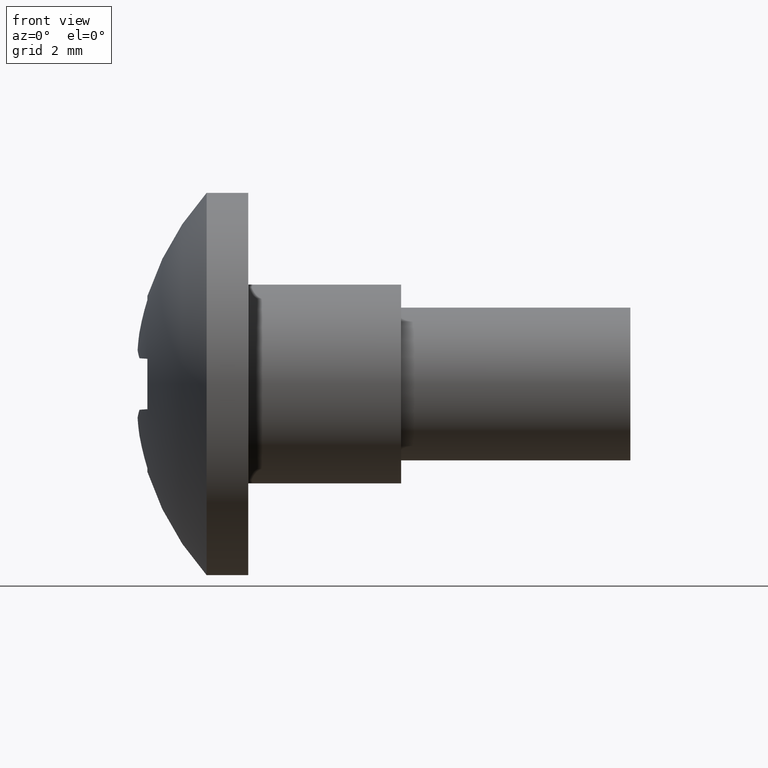
[diagram: clean part render]
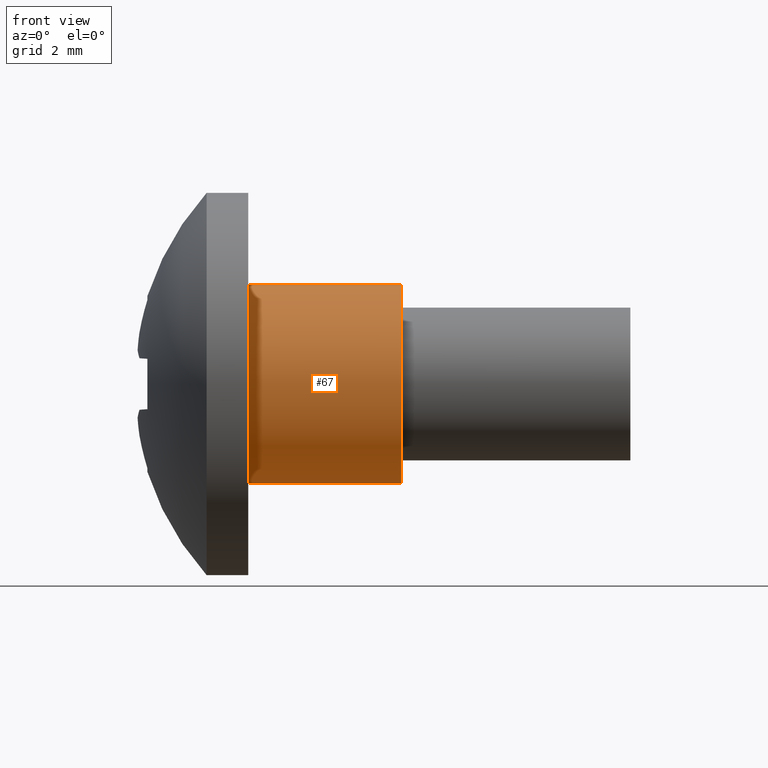
[diagram: same view with one face highlighted and labeled with its STEP entity id]
A machine part, front view. The second image highlights one B-rep face of the part: STEP entity #67.
In plain terms, the highlighted cylindrical surface (partial cylindrical patch) has radius 2.6 mm, axis along (-1, -0, 0).
Its self-contained STEP definition (entity closure, byte-faithful):
#67=ADVANCED_FACE('',(#345),#344,.T.);
#344=CYLINDRICAL_SURFACE('',#534,2.60000000000E+00);
#345=FACE_OUTER_BOUND('',#535,.T.);
#531=CARTESIAN_POINT('',(-8.00000000000E+00,0.00000000000E+00,0.00000000000E+00));
#532=DIRECTION('',(-1.00000000000E+00,-0.00000000000E+00,0.00000000000E+00));
#533=DIRECTION('',(0.00000000000E+00,-0.00000000000E+00,1.00000000000E+00));
#534=AXIS2_PLACEMENT_3D('',#531,#532,#533);
#535=EDGE_LOOP('',(#680,#681,#682,#683));
#680=ORIENTED_EDGE('',*,*,#743,.T.);
#681=ORIENTED_EDGE('',*,*,#794,.T.);
#682=ORIENTED_EDGE('',*,*,#741,.F.);
#683=ORIENTED_EDGE('',*,*,#795,.F.);
#741=EDGE_CURVE('',#944,#945,#946,.T.);
#743=EDGE_CURVE('',#958,#959,#960,.T.);
#794=EDGE_CURVE('',#959,#945,#1298,.T.);
#795=EDGE_CURVE('',#958,#944,#1304,.T.);
#944=VERTEX_POINT('',#1436);
#945=VERTEX_POINT('',#1437);
#946=CIRCLE('',#1441,2.60000000000E+00);
#958=VERTEX_POINT('',#1446);
#959=VERTEX_POINT('',#1447);
#960=CIRCLE('',#1451,2.60000000000E+00);
#1298=(BOUNDED_CURVE() B_SPLINE_CURVE(1,(#1656,#1657),.UNSPECIFIED.,.F.,.F.) B_SPLINE_CURVE_WITH_KNOTS((2,2),(8.33333358172E-02,9.16666671238E-01),.UNSPECIFIED.) CURVE() GEOMETRIC_REPRESENTATION_ITEM() RATIONAL_B_SPLINE_CURVE((1.00000000000E+00,1.00000000000E+00)) REPRESENTATION_ITEM('') );
#1304=(BOUNDED_CURVE() B_SPLINE_CURVE(1,(#1658,#1659),.UNSPECIFIED.,.F.,.F.) B_SPLINE_CURVE_WITH_KNOTS((2,2),(8.33333333333E-02,9.16666666667E-01),.UNSPECIFIED.) CURVE() GEOMETRIC_REPRESENTATION_ITEM() RATIONAL_B_SPLINE_CURVE((7.50000000000E-01,7.50000000000E-01)) REPRESENTATION_ITEM('') );
#1436=CARTESIAN_POINT('',(-1.00000000000E+01,3.18397651994E-16,-2.60000000000E+00));
#1437=CARTESIAN_POINT('',(-1.00000000000E+01,1.48029736617E-16,2.60000000000E+00));
#1438=CARTESIAN_POINT('',(-1.00000000000E+01,0.00000000000E+00,0.00000000000E+00));
#1439=DIRECTION('',(-1.00000000000E+00,0.00000000000E+00,0.00000000000E+00));
#1440=DIRECTION('',(-0.00000000000E+00,-0.00000000000E+00,-1.00000000000E+00));
#1441=AXIS2_PLACEMENT_3D('',#1438,#1439,#1440);
#1446=CARTESIAN_POINT('',(-6.00000000000E+00,0.00000000000E+00,-2.60000000000E+00));
#1447=CARTESIAN_POINT('',(-6.00000000000E+00,-4.66427388611E-16,2.60000000000E+00));
#1448=CARTESIAN_POINT('',(-6.00000000000E+00,0.00000000000E+00,0.00000000000E+00));
#1449=DIRECTION('',(-1.00000000000E+00,0.00000000000E+00,0.00000000000E+00));
#1450=DIRECTION('',(-0.00000000000E+00,-5.69345140835E-17,1.00000000000E+00));
#1451=AXIS2_PLACEMENT_3D('',#1448,#1449,#1450);
#1656=CARTESIAN_POINT('',(-6.00000001192E+00,0.00000000000E+00,2.60000000000E+00));
#1657=CARTESIAN_POINT('',(-1.00000000219E+01,0.00000000000E+00,2.60000000000E+00));
#1658=CARTESIAN_POINT('',(-6.00000000000E+00,-1.48029736617E-16,-2.60000000000E+00));
#1659=CARTESIAN_POINT('',(-1.00000000000E+01,-1.48029736617E-16,-2.60000000000E+00));